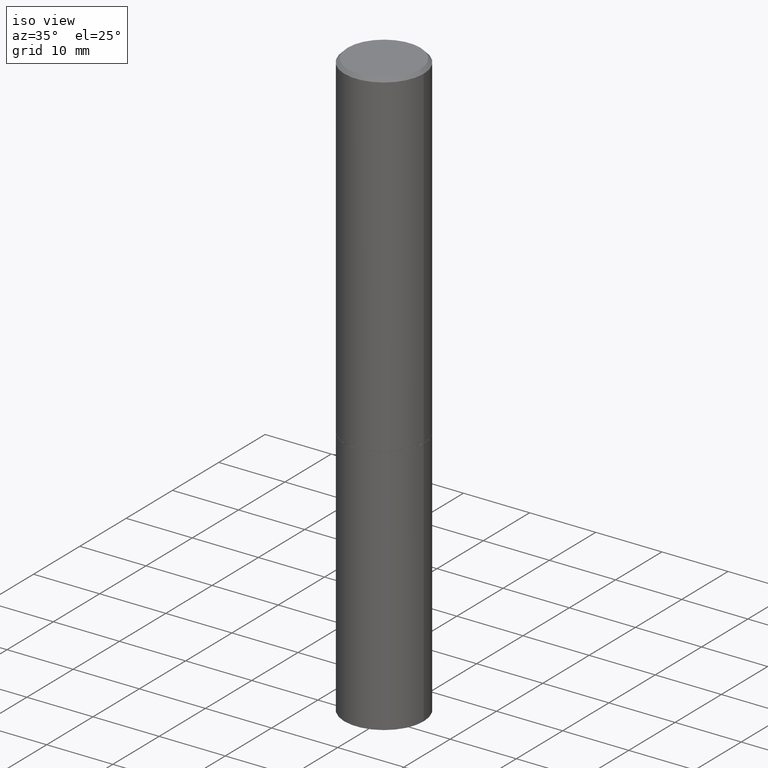
[diagram: clean part render]
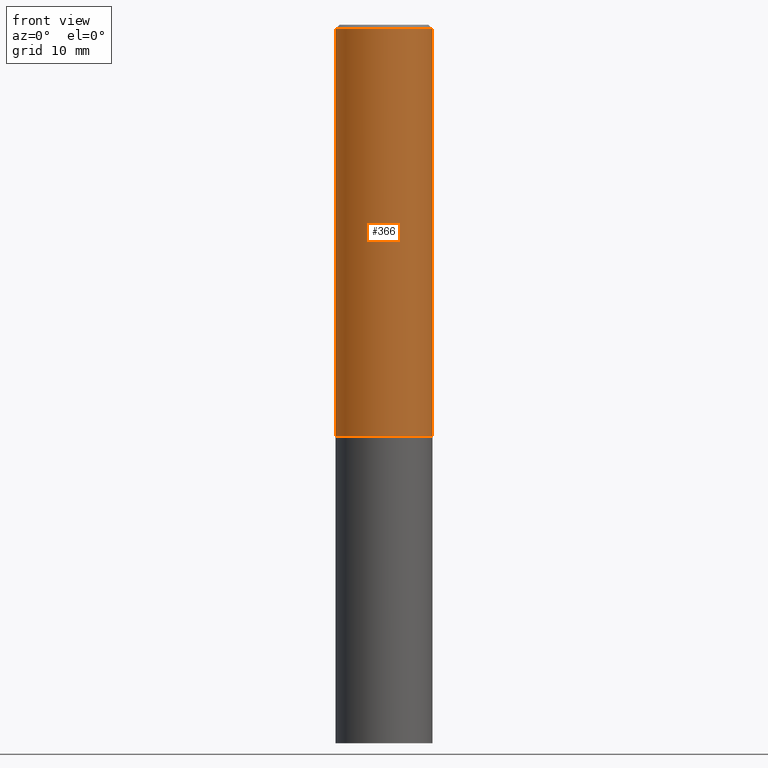
[diagram: tour spotlight — one face highlighted and labeled with its STEP entity id]
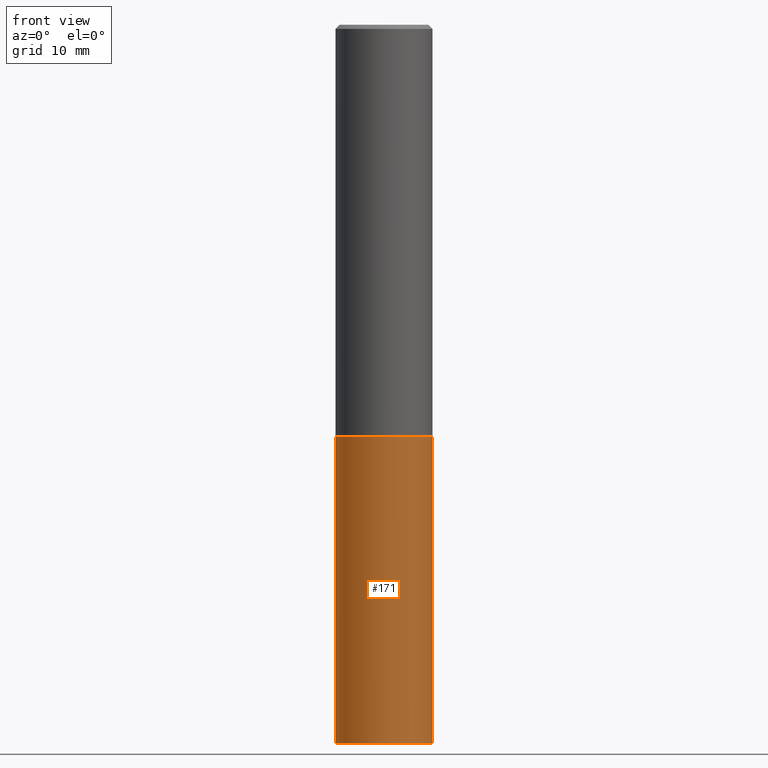
[diagram: tour spotlight — one face highlighted and labeled with its STEP entity id]
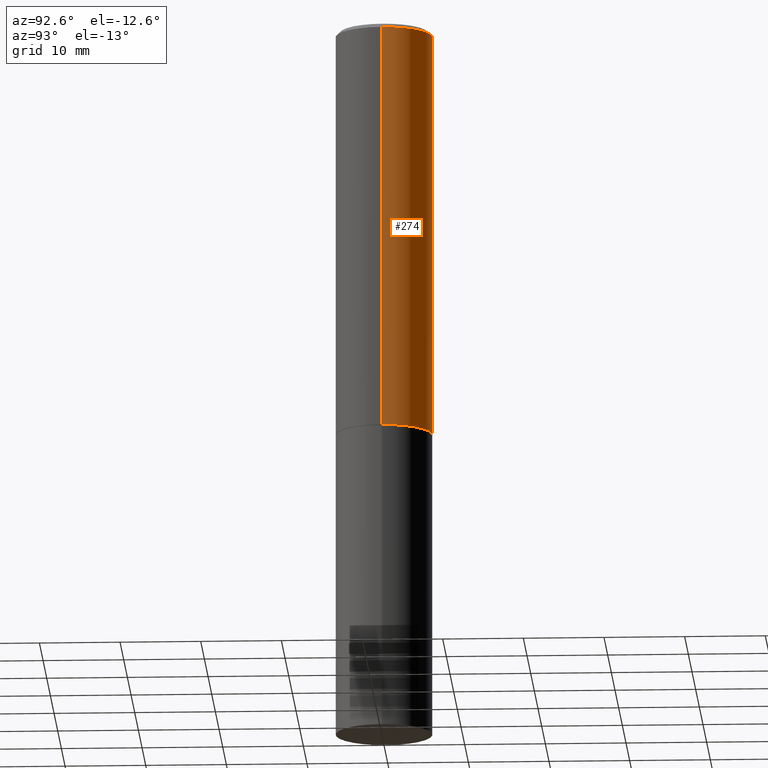
[diagram: tour spotlight — one face highlighted and labeled with its STEP entity id]
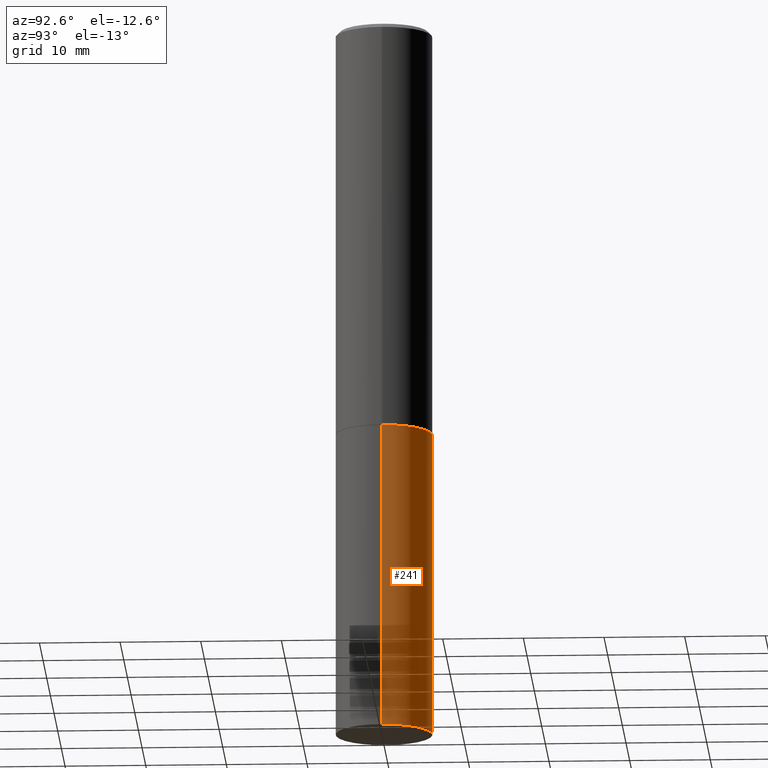
[diagram: tour spotlight — one face highlighted and labeled with its STEP entity id]
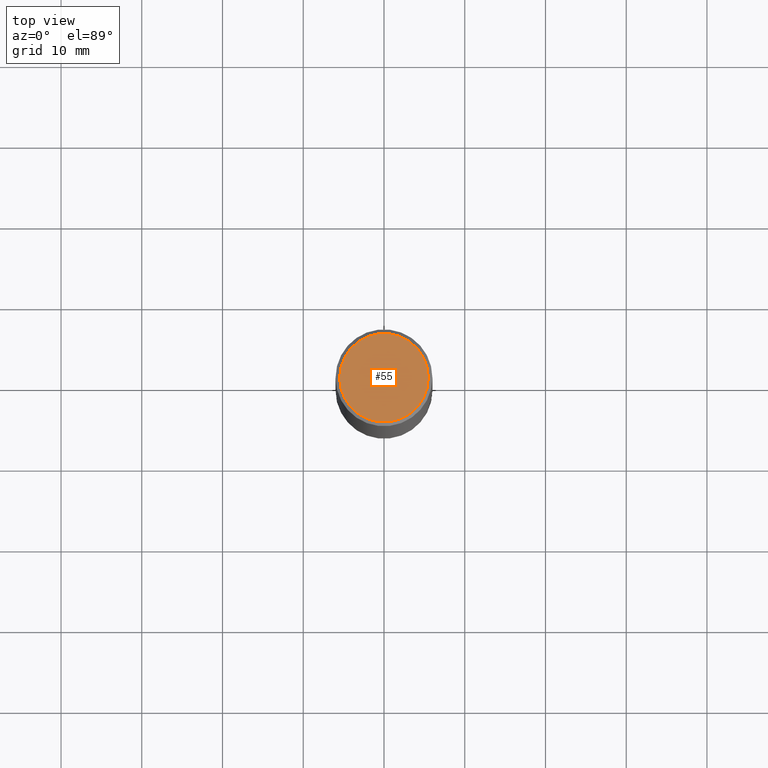
[diagram: tour spotlight — one face highlighted and labeled with its STEP entity id]
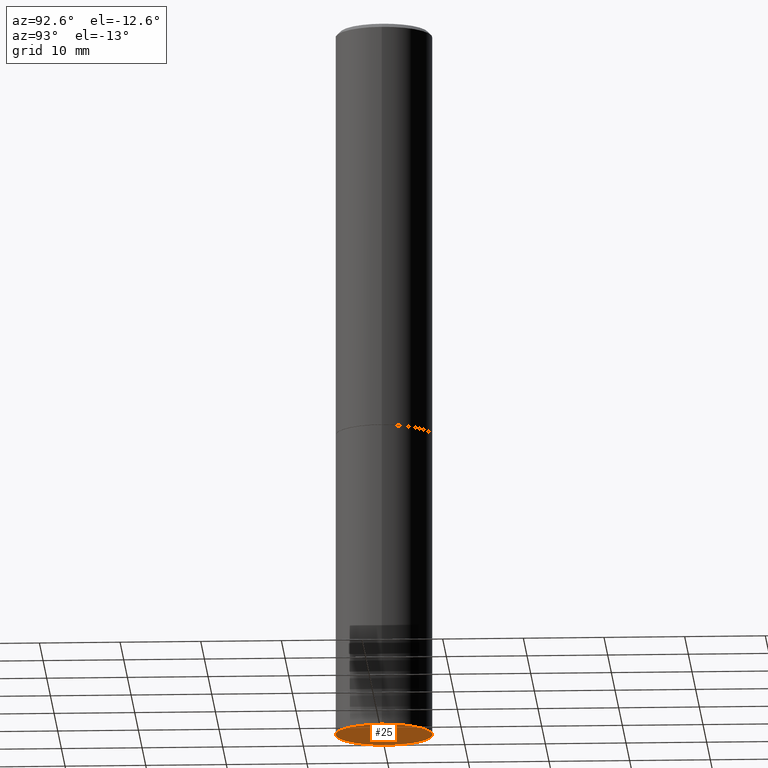
[diagram: tour spotlight — one face highlighted and labeled with its STEP entity id]
A machine part: a face-by-face anatomy tour. The part has 12 B-rep faces; the first image is the clean iso view, then the 6 largest visible faces are spotlighted one at a time (largest first), each with its STEP entity span.

Face 1 — front view, entity #366. In plain terms, the highlighted cylindrical surface (partial cylindrical patch) has radius 5.9995 mm, axis along (-0, 0, 1).
Definition (entity closure, byte-faithful):
#2 = VECTOR ( 'NONE', #18, 39.37007874015748143 ) ;
#3 = ORIENTED_EDGE ( 'NONE', *, *, #309, .T. ) ;
#18 = DIRECTION ( 'NONE',  ( -2.445468806185136877E-29, 3.491481338843145188E-15, 1.000000000000000000 ) ) ;
#21 = DIRECTION ( 'NONE',  ( -2.445468806185136597E-29, 3.491481338843145583E-15, 1.000000000000000000 ) ) ;
#41 = DIRECTION ( 'NONE',  ( 1.000000000000000000, -6.982962677686266711E-15, 4.876176775795935793E-29 ) ) ;
#78 = AXIS2_PLACEMENT_3D ( 'NONE', #216, #193, #79 ) ;
#79 = DIRECTION ( 'NONE',  ( 1.000000000000000000, -6.982962677686265133E-15, 0.000000000000000000 ) ) ;
#81 = VERTEX_POINT ( 'NONE', #184 ) ;
#98 = CARTESIAN_POINT ( 'NONE',  ( -0.2362000000000000210, -1.859965246918283512E-15, -2.006799999999999695 ) ) ;
#102 = DIRECTION ( 'NONE',  ( 1.000000000000000000, -6.982962677686266711E-15, 0.000000000000000000 ) ) ;
#103 = CIRCLE ( 'NONE', #363, 0.2361999999999997157 ) ;
#109 = AXIS2_PLACEMENT_3D ( 'NONE', #252, #317, #41 ) ;
#140 = EDGE_CURVE ( 'NONE', #220, #195, #291, .T. ) ;
#145 = FACE_OUTER_BOUND ( 'NONE', #307, .T. ) ;
#148 = CYLINDRICAL_SURFACE ( 'NONE', #109, 0.2361999999999998545 ) ;
#163 = VECTOR ( 'NONE', #350, 39.37007874015748143 ) ;
#172 = ORIENTED_EDGE ( 'NONE', *, *, #286, .F. ) ;
#184 = CARTESIAN_POINT ( 'NONE',  ( 0.2361999999999997157, -1.690279253850496996E-15, -0.02000000000000003164 ) ) ;
#186 = CARTESIAN_POINT ( 'NONE',  ( -0.2361999999999998545, 1.678301941865355605E-15, -1.161852468318208056E-29 ) ) ;
#193 = DIRECTION ( 'NONE',  ( -2.445468806185136597E-29, 3.491481338843145583E-15, 1.000000000000000000 ) ) ;
#195 = VERTEX_POINT ( 'NONE', #253 ) ;
#216 = CARTESIAN_POINT ( 'NONE',  ( 4.907566800252331482E-29, -7.006704750790423614E-15, -2.006799999999999695 ) ) ;
#218 = CARTESIAN_POINT ( 'NONE',  ( 0.2361999999999999933, -8.656080535259919350E-15, -2.006799999999999695 ) ) ;
#220 = VERTEX_POINT ( 'NONE', #98 ) ;
#232 = CIRCLE ( 'NONE', #78, 0.2361999999999999933 ) ;
#252 = CARTESIAN_POINT ( 'NONE',  ( 0.000000000000000000, 0.000000000000000000, 0.000000000000000000 ) ) ;
#253 = CARTESIAN_POINT ( 'NONE',  ( -0.2361999999999997157, 1.579546157692631255E-15, -0.02000000000000003164 ) ) ;
#270 = CARTESIAN_POINT ( 'NONE',  ( 4.890937612370280165E-31, -6.982962677686301470E-17, -0.02000000000000003164 ) ) ;
#275 = VERTEX_POINT ( 'NONE', #218 ) ;
#286 = EDGE_CURVE ( 'NONE', #195, #81, #103, .T. ) ;
#291 = LINE ( 'NONE', #186, #163 ) ;
#297 = CARTESIAN_POINT ( 'NONE',  ( 0.2361999999999998545, -1.649375784469495145E-15, 1.151752954442999387E-29 ) ) ;
#298 = EDGE_CURVE ( 'NONE', #275, #81, #331, .T. ) ;
#304 = ORIENTED_EDGE ( 'NONE', *, *, #140, .F. ) ;
#306 = ORIENTED_EDGE ( 'NONE', *, *, #298, .T. ) ;
#307 = EDGE_LOOP ( 'NONE', ( #304, #3, #306, #172 ) ) ;
#309 = EDGE_CURVE ( 'NONE', #220, #275, #232, .T. ) ;
#317 = DIRECTION ( 'NONE',  ( -2.445468806185136597E-29, 3.491481338843145583E-15, 1.000000000000000000 ) ) ;
#331 = LINE ( 'NONE', #297, #2 ) ;
#350 = DIRECTION ( 'NONE',  ( -2.445468806185136877E-29, 3.491481338843145188E-15, 1.000000000000000000 ) ) ;
#363 = AXIS2_PLACEMENT_3D ( 'NONE', #270, #21, #102 ) ;
#366 = ADVANCED_FACE ( 'NONE', ( #145 ), #148, .T. ) ;

Face 2 — front view, entity #171. In plain terms, the highlighted cylindrical surface (partial cylindrical patch) has radius 5.9995 mm, axis along (-0, 0, 1).
Definition (entity closure, byte-faithful):
#11 = EDGE_CURVE ( 'NONE', #243, #342, #271, .T. ) ;
#19 = DIRECTION ( 'NONE',  ( -2.445468806185136877E-29, 3.491481338843145188E-15, 1.000000000000000000 ) ) ;
#20 = EDGE_CURVE ( 'NONE', #337, #82, #277, .T. ) ;
#27 = VECTOR ( 'NONE', #19, 39.37007874015748143 ) ;
#30 = ORIENTED_EDGE ( 'NONE', *, *, #11, .F. ) ;
#32 = ORIENTED_EDGE ( 'NONE', *, *, #20, .T. ) ;
#36 = DIRECTION ( 'NONE',  ( -2.445468806185136877E-29, 3.491481338843145188E-15, 1.000000000000000000 ) ) ;
#37 = CARTESIAN_POINT ( 'NONE',  ( 8.568678149992099474E-29, -1.223380146317249786E-14, -3.503899999999999793 ) ) ;
#43 = AXIS2_PLACEMENT_3D ( 'NONE', #175, #146, #257 ) ;
#82 = VERTEX_POINT ( 'NONE', #210 ) ;
#86 = AXIS2_PLACEMENT_3D ( 'NONE', #37, #351, #206 ) ;
#95 = CARTESIAN_POINT ( 'NONE',  ( -0.2361999999999999933, -7.943696905785525451E-15, -2.007800000000000029 ) ) ;
#146 = DIRECTION ( 'NONE',  ( -2.445468806185136597E-29, 3.491481338843145583E-15, 1.000000000000000000 ) ) ;
#152 = CARTESIAN_POINT ( 'NONE',  ( -0.2361999999999999933, -7.943696905785525451E-15, -3.503899999999999793 ) ) ;
#164 = CARTESIAN_POINT ( 'NONE',  ( 0.2361999999999999933, -1.649375784469496131E-15, 1.151752954443000088E-29 ) ) ;
#171 = ADVANCED_FACE ( 'NONE', ( #231 ), #233, .T. ) ;
#175 = CARTESIAN_POINT ( 'NONE',  ( 0.000000000000000000, 0.000000000000000000, 0.000000000000000000 ) ) ;
#188 = EDGE_CURVE ( 'NONE', #337, #243, #318, .T. ) ;
#196 = VECTOR ( 'NONE', #36, 39.37007874015748143 ) ;
#204 = DIRECTION ( 'NONE',  ( 1.000000000000000000, -6.982962677686269077E-15, 0.000000000000000000 ) ) ;
#206 = DIRECTION ( 'NONE',  ( 1.000000000000000000, -6.982962677686265133E-15, 0.000000000000000000 ) ) ;
#210 = CARTESIAN_POINT ( 'NONE',  ( 0.2361999999999999933, -1.388317724764199281E-14, -3.503899999999999793 ) ) ;
#219 = ORIENTED_EDGE ( 'NONE', *, *, #188, .F. ) ;
#223 = ORIENTED_EDGE ( 'NONE', *, *, #315, .T. ) ;
#224 = CARTESIAN_POINT ( 'NONE',  ( 4.910012269058516525E-29, -7.010196232129267410E-15, -2.007800000000000029 ) ) ;
#228 = CARTESIAN_POINT ( 'NONE',  ( -0.2361999999999999933, 1.678301941865356591E-15, -1.161852468318208757E-29 ) ) ;
#231 = FACE_OUTER_BOUND ( 'NONE', #308, .T. ) ;
#233 = CYLINDRICAL_SURFACE ( 'NONE', #43, 0.2361999999999999933 ) ;
#243 = VERTEX_POINT ( 'NONE', #95 ) ;
#257 = DIRECTION ( 'NONE',  ( 1.000000000000000000, -6.982962677686266711E-15, 4.876176775795936353E-29 ) ) ;
#271 = CIRCLE ( 'NONE', #300, 0.2361999999999999933 ) ;
#277 = CIRCLE ( 'NONE', #86, 0.2361999999999999933 ) ;
#300 = AXIS2_PLACEMENT_3D ( 'NONE', #224, #347, #204 ) ;
#303 = LINE ( 'NONE', #164, #27 ) ;
#308 = EDGE_LOOP ( 'NONE', ( #219, #32, #223, #30 ) ) ;
#313 = CARTESIAN_POINT ( 'NONE',  ( 0.2361999999999999933, -8.659572016598763935E-15, -2.007800000000000029 ) ) ;
#315 = EDGE_CURVE ( 'NONE', #82, #342, #303, .T. ) ;
#318 = LINE ( 'NONE', #228, #196 ) ;
#337 = VERTEX_POINT ( 'NONE', #152 ) ;
#342 = VERTEX_POINT ( 'NONE', #313 ) ;
#347 = DIRECTION ( 'NONE',  ( -2.445468806185136597E-29, 3.491481338843145583E-15, 1.000000000000000000 ) ) ;
#351 = DIRECTION ( 'NONE',  ( -2.445468806185136597E-29, 3.491481338843145583E-15, 1.000000000000000000 ) ) ;

Face 3 — auxiliary view, entity #274. In plain terms, the highlighted cylindrical surface (partial cylindrical patch) has radius 5.9995 mm, axis along (-0, 0, 1).
Definition (entity closure, byte-faithful):
#2 = VECTOR ( 'NONE', #18, 39.37007874015748143 ) ;
#18 = DIRECTION ( 'NONE',  ( -2.445468806185136877E-29, 3.491481338843145188E-15, 1.000000000000000000 ) ) ;
#50 = CARTESIAN_POINT ( 'NONE',  ( 0.000000000000000000, 0.000000000000000000, 0.000000000000000000 ) ) ;
#76 = CYLINDRICAL_SURFACE ( 'NONE', #221, 0.2361999999999998545 ) ;
#80 = FACE_OUTER_BOUND ( 'NONE', #248, .T. ) ;
#81 = VERTEX_POINT ( 'NONE', #184 ) ;
#89 = DIRECTION ( 'NONE',  ( 1.000000000000000000, -6.982962677686265133E-15, 0.000000000000000000 ) ) ;
#97 = DIRECTION ( 'NONE',  ( -2.445468806185136597E-29, 3.491481338843145583E-15, 1.000000000000000000 ) ) ;
#98 = CARTESIAN_POINT ( 'NONE',  ( -0.2362000000000000210, -1.859965246918283512E-15, -2.006799999999999695 ) ) ;
#107 = ORIENTED_EDGE ( 'NONE', *, *, #298, .F. ) ;
#115 = AXIS2_PLACEMENT_3D ( 'NONE', #125, #97, #89 ) ;
#125 = CARTESIAN_POINT ( 'NONE',  ( 4.907566800252331482E-29, -7.006704750790423614E-15, -2.006799999999999695 ) ) ;
#140 = EDGE_CURVE ( 'NONE', #220, #195, #291, .T. ) ;
#142 = ORIENTED_EDGE ( 'NONE', *, *, #333, .T. ) ;
#149 = DIRECTION ( 'NONE',  ( 1.000000000000000000, -6.982962677686266711E-15, 0.000000000000000000 ) ) ;
#163 = VECTOR ( 'NONE', #350, 39.37007874015748143 ) ;
#173 = ORIENTED_EDGE ( 'NONE', *, *, #236, .F. ) ;
#184 = CARTESIAN_POINT ( 'NONE',  ( 0.2361999999999997157, -1.690279253850496996E-15, -0.02000000000000003164 ) ) ;
#186 = CARTESIAN_POINT ( 'NONE',  ( -0.2361999999999998545, 1.678301941865355605E-15, -1.161852468318208056E-29 ) ) ;
#187 = CIRCLE ( 'NONE', #115, 0.2361999999999999933 ) ;
#192 = AXIS2_PLACEMENT_3D ( 'NONE', #203, #287, #149 ) ;
#195 = VERTEX_POINT ( 'NONE', #253 ) ;
#203 = CARTESIAN_POINT ( 'NONE',  ( 4.890937612370280165E-31, -6.982962677686301470E-17, -0.02000000000000003164 ) ) ;
#209 = ORIENTED_EDGE ( 'NONE', *, *, #140, .T. ) ;
#215 = DIRECTION ( 'NONE',  ( 1.000000000000000000, -6.982962677686266711E-15, 4.876176775795935793E-29 ) ) ;
#218 = CARTESIAN_POINT ( 'NONE',  ( 0.2361999999999999933, -8.656080535259919350E-15, -2.006799999999999695 ) ) ;
#220 = VERTEX_POINT ( 'NONE', #98 ) ;
#221 = AXIS2_PLACEMENT_3D ( 'NONE', #50, #359, #215 ) ;
#236 = EDGE_CURVE ( 'NONE', #81, #195, #301, .T. ) ;
#248 = EDGE_LOOP ( 'NONE', ( #142, #209, #173, #107 ) ) ;
#253 = CARTESIAN_POINT ( 'NONE',  ( -0.2361999999999997157, 1.579546157692631255E-15, -0.02000000000000003164 ) ) ;
#274 = ADVANCED_FACE ( 'NONE', ( #80 ), #76, .T. ) ;
#275 = VERTEX_POINT ( 'NONE', #218 ) ;
#287 = DIRECTION ( 'NONE',  ( -2.445468806185136597E-29, 3.491481338843145583E-15, 1.000000000000000000 ) ) ;
#291 = LINE ( 'NONE', #186, #163 ) ;
#297 = CARTESIAN_POINT ( 'NONE',  ( 0.2361999999999998545, -1.649375784469495145E-15, 1.151752954442999387E-29 ) ) ;
#298 = EDGE_CURVE ( 'NONE', #275, #81, #331, .T. ) ;
#301 = CIRCLE ( 'NONE', #192, 0.2361999999999997157 ) ;
#331 = LINE ( 'NONE', #297, #2 ) ;
#333 = EDGE_CURVE ( 'NONE', #275, #220, #187, .T. ) ;
#350 = DIRECTION ( 'NONE',  ( -2.445468806185136877E-29, 3.491481338843145188E-15, 1.000000000000000000 ) ) ;
#359 = DIRECTION ( 'NONE',  ( -2.445468806185136597E-29, 3.491481338843145583E-15, 1.000000000000000000 ) ) ;

Face 4 — auxiliary view, entity #241. In plain terms, the highlighted cylindrical surface (partial cylindrical patch) has radius 5.9995 mm, axis along (-0, 0, 1).
Definition (entity closure, byte-faithful):
#15 = EDGE_CURVE ( 'NONE', #82, #337, #191, .T. ) ;
#19 = DIRECTION ( 'NONE',  ( -2.445468806185136877E-29, 3.491481338843145188E-15, 1.000000000000000000 ) ) ;
#27 = VECTOR ( 'NONE', #19, 39.37007874015748143 ) ;
#34 = CARTESIAN_POINT ( 'NONE',  ( 4.910012269058516525E-29, -7.010196232129267410E-15, -2.007800000000000029 ) ) ;
#36 = DIRECTION ( 'NONE',  ( -2.445468806185136877E-29, 3.491481338843145188E-15, 1.000000000000000000 ) ) ;
#60 = DIRECTION ( 'NONE',  ( -2.445468806185136597E-29, 3.491481338843145583E-15, 1.000000000000000000 ) ) ;
#82 = VERTEX_POINT ( 'NONE', #210 ) ;
#88 = CARTESIAN_POINT ( 'NONE',  ( 8.568678149992099474E-29, -1.223380146317249786E-14, -3.503899999999999793 ) ) ;
#95 = CARTESIAN_POINT ( 'NONE',  ( -0.2361999999999999933, -7.943696905785525451E-15, -2.007800000000000029 ) ) ;
#119 = ORIENTED_EDGE ( 'NONE', *, *, #315, .F. ) ;
#122 = CYLINDRICAL_SURFACE ( 'NONE', #242, 0.2361999999999999933 ) ;
#126 = CARTESIAN_POINT ( 'NONE',  ( 0.000000000000000000, 0.000000000000000000, 0.000000000000000000 ) ) ;
#129 = DIRECTION ( 'NONE',  ( 1.000000000000000000, -6.982962677686269077E-15, 0.000000000000000000 ) ) ;
#138 = AXIS2_PLACEMENT_3D ( 'NONE', #88, #319, #288 ) ;
#152 = CARTESIAN_POINT ( 'NONE',  ( -0.2361999999999999933, -7.943696905785525451E-15, -3.503899999999999793 ) ) ;
#162 = EDGE_CURVE ( 'NONE', #342, #243, #200, .T. ) ;
#164 = CARTESIAN_POINT ( 'NONE',  ( 0.2361999999999999933, -1.649375784469496131E-15, 1.151752954443000088E-29 ) ) ;
#188 = EDGE_CURVE ( 'NONE', #337, #243, #318, .T. ) ;
#191 = CIRCLE ( 'NONE', #138, 0.2361999999999999933 ) ;
#196 = VECTOR ( 'NONE', #36, 39.37007874015748143 ) ;
#200 = CIRCLE ( 'NONE', #343, 0.2361999999999999933 ) ;
#208 = FACE_OUTER_BOUND ( 'NONE', #278, .T. ) ;
#210 = CARTESIAN_POINT ( 'NONE',  ( 0.2361999999999999933, -1.388317724764199281E-14, -3.503899999999999793 ) ) ;
#228 = CARTESIAN_POINT ( 'NONE',  ( -0.2361999999999999933, 1.678301941865356591E-15, -1.161852468318208757E-29 ) ) ;
#241 = ADVANCED_FACE ( 'NONE', ( #208 ), #122, .T. ) ;
#242 = AXIS2_PLACEMENT_3D ( 'NONE', #126, #348, #323 ) ;
#243 = VERTEX_POINT ( 'NONE', #95 ) ;
#278 = EDGE_LOOP ( 'NONE', ( #280, #341, #364, #119 ) ) ;
#280 = ORIENTED_EDGE ( 'NONE', *, *, #15, .T. ) ;
#288 = DIRECTION ( 'NONE',  ( 1.000000000000000000, -6.982962677686265133E-15, 0.000000000000000000 ) ) ;
#303 = LINE ( 'NONE', #164, #27 ) ;
#313 = CARTESIAN_POINT ( 'NONE',  ( 0.2361999999999999933, -8.659572016598763935E-15, -2.007800000000000029 ) ) ;
#315 = EDGE_CURVE ( 'NONE', #82, #342, #303, .T. ) ;
#318 = LINE ( 'NONE', #228, #196 ) ;
#319 = DIRECTION ( 'NONE',  ( -2.445468806185136597E-29, 3.491481338843145583E-15, 1.000000000000000000 ) ) ;
#323 = DIRECTION ( 'NONE',  ( 1.000000000000000000, -6.982962677686266711E-15, 4.876176775795936353E-29 ) ) ;
#337 = VERTEX_POINT ( 'NONE', #152 ) ;
#341 = ORIENTED_EDGE ( 'NONE', *, *, #188, .T. ) ;
#342 = VERTEX_POINT ( 'NONE', #313 ) ;
#343 = AXIS2_PLACEMENT_3D ( 'NONE', #34, #60, #129 ) ;
#348 = DIRECTION ( 'NONE',  ( -2.445468806185136597E-29, 3.491481338843145583E-15, 1.000000000000000000 ) ) ;
#364 = ORIENTED_EDGE ( 'NONE', *, *, #162, .F. ) ;

Face 5 — top view, entity #55. In plain terms, the highlighted planar face has unit normal (0, -0, -1).
Definition (entity closure, byte-faithful):
#4 = CARTESIAN_POINT ( 'NONE',  ( -0.2161999999999997257, 1.544631344304200197E-15, 4.268512490089730842E-18 ) ) ;
#17 = CIRCLE ( 'NONE', #267, 0.2161999999999997257 ) ;
#44 = CARTESIAN_POINT ( 'NONE',  ( -1.043851414335219820E-46, 1.490343170380447200E-32, 4.268512490100411279E-18 ) ) ;
#55 = ADVANCED_FACE ( 'NONE', ( #130 ), #214, .F. ) ;
#56 = VERTEX_POINT ( 'NONE', #332 ) ;
#75 = AXIS2_PLACEMENT_3D ( 'NONE', #240, #299, #165 ) ;
#84 = ORIENTED_EDGE ( 'NONE', *, *, #256, .T. ) ;
#85 = EDGE_CURVE ( 'NONE', #197, #56, #17, .T. ) ;
#87 = CIRCLE ( 'NONE', #75, 0.2161999999999997257 ) ;
#101 = DIRECTION ( 'NONE',  ( -1.000000000000000000, 6.982962677686265922E-15, -4.876176775795935793E-29 ) ) ;
#130 = FACE_OUTER_BOUND ( 'NONE', #170, .T. ) ;
#165 = DIRECTION ( 'NONE',  ( 1.000000000000000000, -6.982962677686267499E-15, 4.876217060660161841E-29 ) ) ;
#166 = ORIENTED_EDGE ( 'NONE', *, *, #85, .T. ) ;
#170 = EDGE_LOOP ( 'NONE', ( #166, #84 ) ) ;
#190 = DIRECTION ( 'NONE',  ( 2.438088387897960049E-29, -3.491481338843145188E-15, -1.000000000000000000 ) ) ;
#197 = VERTEX_POINT ( 'NONE', #4 ) ;
#214 = PLANE ( 'NONE',  #330 ) ;
#240 = CARTESIAN_POINT ( 'NONE',  ( -1.043851414335219820E-46, 1.490343170380447200E-32, 4.268512490100411279E-18 ) ) ;
#256 = EDGE_CURVE ( 'NONE', #56, #197, #87, .T. ) ;
#262 = DIRECTION ( 'NONE',  ( -2.445468806185136597E-29, 3.491481338843145583E-15, 1.000000000000000000 ) ) ;
#264 = CARTESIAN_POINT ( 'NONE',  ( 1.509716530915768746E-15, 0.2161999999999997257, -7.527240092128370190E-16 ) ) ;
#267 = AXIS2_PLACEMENT_3D ( 'NONE', #44, #262, #354 ) ;
#299 = DIRECTION ( 'NONE',  ( -2.445468806185136597E-29, 3.491481338843145583E-15, 1.000000000000000000 ) ) ;
#330 = AXIS2_PLACEMENT_3D ( 'NONE', #264, #190, #101 ) ;
#332 = CARTESIAN_POINT ( 'NONE',  ( 0.2161999999999997257, -1.586759460484350016E-15, 4.268512490111238857E-18 ) ) ;
#354 = DIRECTION ( 'NONE',  ( 1.000000000000000000, -6.982962677686267499E-15, 4.876217060660161841E-29 ) ) ;

Face 6 — auxiliary view, entity #25. In plain terms, the highlighted planar face has unit normal (0, -0, -1).
Definition (entity closure, byte-faithful):
#15 = EDGE_CURVE ( 'NONE', #82, #337, #191, .T. ) ;
#20 = EDGE_CURVE ( 'NONE', #337, #82, #277, .T. ) ;
#24 = ORIENTED_EDGE ( 'NONE', *, *, #15, .F. ) ;
#25 = ADVANCED_FACE ( 'NONE', ( #150 ), #259, .T. ) ;
#28 = EDGE_LOOP ( 'NONE', ( #24, #273 ) ) ;
#37 = CARTESIAN_POINT ( 'NONE',  ( 8.568678149992099474E-29, -1.223380146317249786E-14, -3.503899999999999793 ) ) ;
#82 = VERTEX_POINT ( 'NONE', #210 ) ;
#86 = AXIS2_PLACEMENT_3D ( 'NONE', #37, #351, #206 ) ;
#88 = CARTESIAN_POINT ( 'NONE',  ( 8.568678149992099474E-29, -1.223380146317249786E-14, -3.503899999999999793 ) ) ;
#138 = AXIS2_PLACEMENT_3D ( 'NONE', #88, #319, #288 ) ;
#150 = FACE_OUTER_BOUND ( 'NONE', #28, .T. ) ;
#152 = CARTESIAN_POINT ( 'NONE',  ( -0.2361999999999999933, -7.943696905785525451E-15, -3.503899999999999793 ) ) ;
#191 = CIRCLE ( 'NONE', #138, 0.2361999999999999933 ) ;
#206 = DIRECTION ( 'NONE',  ( 1.000000000000000000, -6.982962677686265133E-15, 0.000000000000000000 ) ) ;
#210 = CARTESIAN_POINT ( 'NONE',  ( 0.2361999999999999933, -1.388317724764199281E-14, -3.503899999999999793 ) ) ;
#251 = DIRECTION ( 'NONE',  ( -1.000000000000000000, 6.982962677686265922E-15, -4.876176775795935793E-29 ) ) ;
#259 = PLANE ( 'NONE',  #293 ) ;
#273 = ORIENTED_EDGE ( 'NONE', *, *, #20, .F. ) ;
#277 = CIRCLE ( 'NONE', #86, 0.2361999999999999933 ) ;
#288 = DIRECTION ( 'NONE',  ( 1.000000000000000000, -6.982962677686265133E-15, 0.000000000000000000 ) ) ;
#293 = AXIS2_PLACEMENT_3D ( 'NONE', #324, #312, #251 ) ;
#312 = DIRECTION ( 'NONE',  ( 2.438088387897960049E-29, -3.491481338843145188E-15, -1.000000000000000000 ) ) ;
#319 = DIRECTION ( 'NONE',  ( -2.445468806185136597E-29, 3.491481338843145583E-15, 1.000000000000000000 ) ) ;
#324 = CARTESIAN_POINT ( 'NONE',  ( 1.649375784469581525E-15, 0.2361999999999877808, -3.503900000000000681 ) ) ;
#337 = VERTEX_POINT ( 'NONE', #152 ) ;
#351 = DIRECTION ( 'NONE',  ( -2.445468806185136597E-29, 3.491481338843145583E-15, 1.000000000000000000 ) ) ;